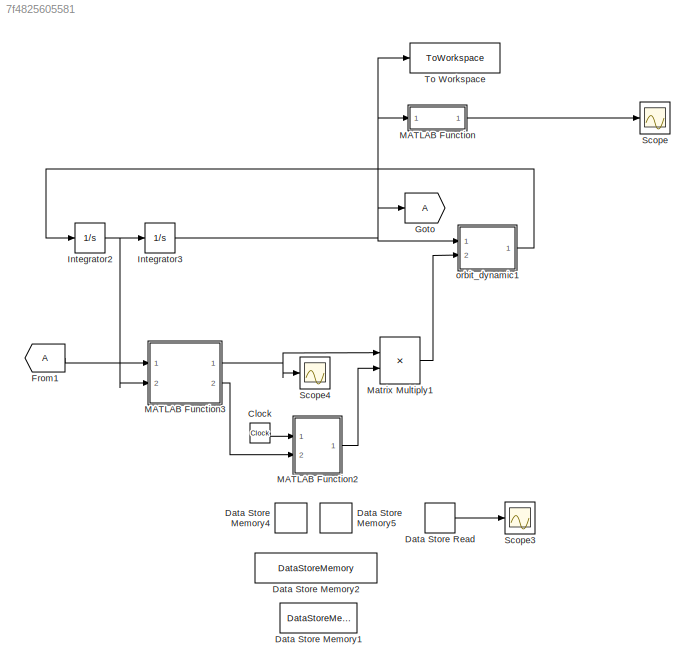
MODEL slx_7f4825605581
KIND model
CONFIG AbsTol = auto
CONFIG EnableMultiTasking = off
CONFIG FixedStep = 0.05
CONFIG MaxStep = auto
CONFIG MinStep = auto
CONFIG RelTol = 1e-100
CONFIG SampleTimeConstraint = Unconstrained
CONFIG SolverName = ode4
CONFIG StartTime = 0.0
CONFIG StopTime = 50000
BLOCK [Clock] Clock
BLOCK [DataStoreMemory] Data Store Memory1
  DataStoreName = maneuvers
  InitialValue = maneuvers
  OutDataTypeStr = double
  ReadBeforeWriteMsg = warning
  ShowAdditionalParam = off
  SignalType = real
  WriteAfterReadMsg = warning
  WriteAfterWriteMsg = warning
BLOCK [DataStoreMemory] Data Store Memory2
  DataStoreName = astrophysical_constants
  InitialValue = astrophysical_constants
  OutDataTypeStr = double
  ReadBeforeWriteMsg = warning
  ShowAdditionalParam = off
  SignalType = real
  WriteAfterReadMsg = warning
  WriteAfterWriteMsg = warning
BLOCK [DataStoreMemory] Data Store Memory4
  DataStoreName = state
  InitialValue = state
  OutDataTypeStr = int8
  ReadBeforeWriteMsg = warning
  ShowAdditionalParam = off
  SignalType = real
  WriteAfterReadMsg = warning
  WriteAfterWriteMsg = warning
BLOCK [DataStoreMemory] Data Store Memory5
  DataStoreName = t_prev
  InitialValue = t_prev
  OutDataTypeStr = double
  ReadBeforeWriteMsg = warning
  ShowAdditionalParam = off
  SignalType = real
  WriteAfterReadMsg = warning
  WriteAfterWriteMsg = warning
BLOCK [DataStoreRead] Data Store Read
  DataStoreName = state
  IndexOptions = Index vector (dialog)
  Indices = 1
  OutputSizes = 1
  Ports = [0, 1]
BLOCK [From] From1
BLOCK [Goto] Goto
BLOCK [Integrator] Integrator2
  InitialCondition = N_dr_H2N_0
  Ports = [1, 1]
BLOCK [Integrator] Integrator3
  InitialCondition = N_r_H2N_0
  Ports = [1, 1]
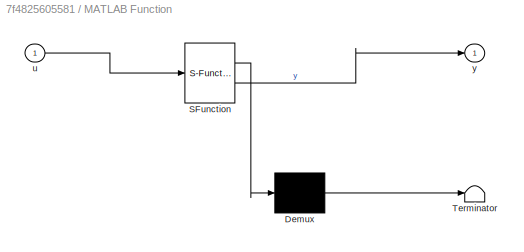
BLOCK [SubSystem] MATLAB Function
  ErrorFcn = Stateflow.Translate.translate
  PermitHierarchicalResolution = ExplicitOnly
  Ports = [1, 1]
  RequestExecContextInheritance = off
  SFBlockType = MATLAB Function
  TreatAsAtomicUnit = on
BLOCK [Demux] MATLAB Function/ Demux 
  Outputs = 1
  Ports = [1, 1]
BLOCK [S-Function] MATLAB Function/ SFunction 
  EnableBusSupport = on
  FunctionName = sf_sfun
  PortCounts = [1 2]
  Ports = [1, 2]
  SFcnIsStateOwnerBlock = off
  SFunctionDeploymentMode = off
  Tag = Stateflow S-Function 2
BLOCK [Terminator] MATLAB Function/ Terminator 
BLOCK [Inport] MATLAB Function/u
BLOCK [Outport] MATLAB Function/y
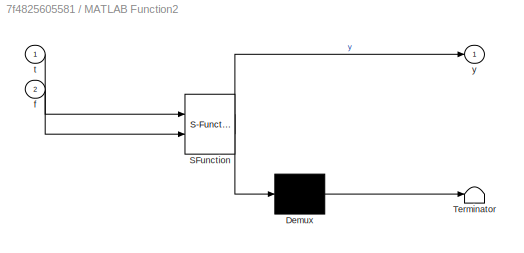
BLOCK [SubSystem] MATLAB Function2
  ErrorFcn = Stateflow.Translate.translate
  PermitHierarchicalResolution = ExplicitOnly
  Ports = [2, 1]
  RequestExecContextInheritance = off
  SFBlockType = MATLAB Function
  TreatAsAtomicUnit = on
BLOCK [Demux] MATLAB Function2/ Demux 
  Outputs = 1
  Ports = [1, 1]
BLOCK [S-Function] MATLAB Function2/ SFunction 
  EnableBusSupport = on
  FunctionName = sf_sfun
  PortCounts = [2 2]
  Ports = [2, 2]
  SFcnIsStateOwnerBlock = off
  SFunctionDeploymentMode = off
  Tag = Stateflow S-Function 5
BLOCK [Terminator] MATLAB Function2/ Terminator 
BLOCK [Inport] MATLAB Function2/f
  Port = 2
BLOCK [Inport] MATLAB Function2/t
BLOCK [Outport] MATLAB Function2/y
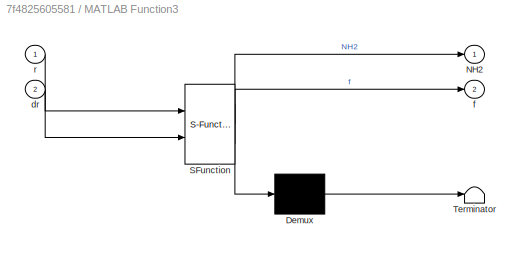
BLOCK [SubSystem] MATLAB Function3
  ErrorFcn = Stateflow.Translate.translate
  PermitHierarchicalResolution = ExplicitOnly
  Ports = [2, 2]
  RequestExecContextInheritance = off
  SFBlockType = MATLAB Function
  TreatAsAtomicUnit = on
BLOCK [Demux] MATLAB Function3/ Demux 
  Outputs = 1
  Ports = [1, 1]
BLOCK [S-Function] MATLAB Function3/ SFunction 
  EnableBusSupport = on
  FunctionName = sf_sfun
  PortCounts = [2 3]
  Ports = [2, 3]
  SFcnIsStateOwnerBlock = off
  SFunctionDeploymentMode = off
  Tag = Stateflow S-Function 9
BLOCK [Terminator] MATLAB Function3/ Terminator 
BLOCK [Outport] MATLAB Function3/NH2
BLOCK [Inport] MATLAB Function3/dr
  Port = 2
BLOCK [Outport] MATLAB Function3/f
  Port = 2
BLOCK [Inport] MATLAB Function3/r
BLOCK [Product] Matrix Multiply1
  Multiplication = Matrix(*)
  Ports = [2, 1]
BLOCK [Scope] Scope
  Floating = off
  NumInputPorts = 1
  Ports = [1]
  ScopeSpecificationString = Simulink.scopes.TimeScopeBlockCfg('CurrentConfiguration', extmgr.ConfigurationSet(extmgr.Configuration('Core','General UI',true),extmgr.Configuration('Core','Source UI',true),extmgr.Configuration('Sources','WiredSimulink',true),extmgr.Configuration('Visuals','Time Domain',true,'SerializedDisplays',{struct('MinYLimReal','2794.71305','MaxYLimReal','42847.58258','YLabelReal','','MinYLimMag','2794.713...<+1434ch>
BLOCK [Scope] Scope3
  Floating = off
  NumInputPorts = 1
  Ports = [1]
  ScopeSpecificationString = Simulink.scopes.TimeScopeBlockCfg('CurrentConfiguration', extmgr.ConfigurationSet(extmgr.Configuration('Core','General UI',true),extmgr.Configuration('Core','Source UI',true),extmgr.Configuration('Sources','WiredSimulink',true,'DataLoggingVariableName','ScopeData3'),extmgr.Configuration('Visuals','Time Domain',true,'SerializedDisplays',{struct('MinYLimReal','-0.875','MaxYLimReal','7.875','YLabelRe...<+1411ch>
BLOCK [Scope] Scope4
  Floating = off
  NumInputPorts = 1
  Ports = [1]
  ScopeSpecificationString = Simulink.scopes.TimeScopeBlockCfg('CurrentConfiguration', extmgr.ConfigurationSet(extmgr.Configuration('Core','General UI',true),extmgr.Configuration('Core','Source UI',true),extmgr.Configuration('Sources','WiredSimulink',true,'DataLoggingVariableName','ScopeData2'),extmgr.Configuration('Visuals','Time Domain',true,'SerializedDisplays',{struct('MinYLimReal','-0.07926','MaxYLimReal','0.0851','YLabe...<+1626ch>
BLOCK [ToWorkspace] To Workspace
  FixptAsFi = on
  MaxDataPoints = inf
  Ports = [1]
  SampleTime = 10
  VariableName = N_r_H2N
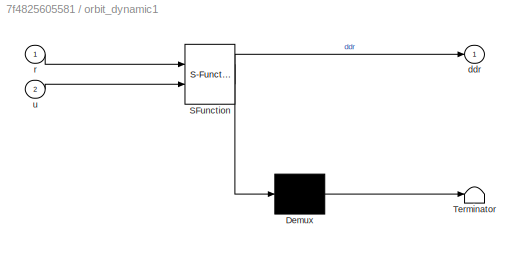
BLOCK [SubSystem] orbit_dynamic1
  ErrorFcn = Stateflow.Translate.translate
  PermitHierarchicalResolution = ExplicitOnly
  Ports = [2, 1]
  RequestExecContextInheritance = off
  SFBlockType = MATLAB Function
  TreatAsAtomicUnit = on
BLOCK [Demux] orbit_dynamic1/ Demux 
  Outputs = 1
  Ports = [1, 1]
BLOCK [S-Function] orbit_dynamic1/ SFunction 
  EnableBusSupport = on
  FunctionName = sf_sfun
  PortCounts = [2 2]
  Ports = [2, 2]
  SFcnIsStateOwnerBlock = off
  SFunctionDeploymentMode = off
  Tag = Stateflow S-Function 4
BLOCK [Terminator] orbit_dynamic1/ Terminator 
BLOCK [Outport] orbit_dynamic1/ddr
BLOCK [Inport] orbit_dynamic1/r
BLOCK [Inport] orbit_dynamic1/u
  Port = 2
LINE Clock:1 -> MATLAB Function2:1
LINE Data Store Read:1 -> Scope3:1
LINE From1:1 -> MATLAB Function3:1
NET Integrator2:1 -> Integrator3:1, MATLAB Function3:2
NET Integrator3:1 -> Goto:1, MATLAB Function:1, To Workspace:1, orbit_dynamic1:1
LINE MATLAB Function2:1 -> Matrix Multiply1:2
NET MATLAB Function3:1 -> Matrix Multiply1:1, Scope4:1
LINE MATLAB Function3:2 -> MATLAB Function2:2
LINE MATLAB Function:1 -> Scope:1
LINE Matrix Multiply1:1 -> orbit_dynamic1:2
LINE orbit_dynamic1:1 -> Integrator2:1
note: NET lines group one-source signal fan-out (src -> all destinations, sorted); 1:1 wires keep LINE
CHART MATLAB Function states=1 transitions=1
  STATE_LABEL 'eML_blk_kernel()'
  STATE_LABEL 'SCRIPT:\nfunction y = fcn(u)\ny = norm(u);\n'
CHART orbit_dynamic1 states=1 transitions=1
  STATE_LABEL 'eML_blk_kernel()'
  STATE_LABEL 'SCRIPT:\nfunction ddr = fcn(r,u)\nglobal astrophysical_constants;\n\nmu=astrophysical_constants(1,1);\n\nddr = -(mu/(norm(r)^3))*r+u;\n'
CHART MATLAB Function2 states=1 transitions=1
  STATE_LABEL 'eML_blk_kernel()'
  STATE_LABEL 'SCRIPT:\nfunction y = fcn(t,f)\n\nglobal astrophysical_constants;\nglobal state;\nglobal t_prev;\nglobal maneuvers;\n\ny=zeros(3,1);\nepsilon_f=0.0001;\ndT=1;\nif state==0 && t>=2000\n    state=int8(1);\n    t_prev=t;\n    astrophysical_constants(5)=10;\nend\n\nif state==1\n    if abs(f-0)<epsilon_f\n        state=int8(2);\n        t_prev=t;\n    end\nend\n\nif state==2\n    if t>=t_prev && t<t_prev+dT \n        dVA=maneuv...<+613ch>'
CHART MATLAB Function3 states=1 transitions=1
  STATE_LABEL 'eML_blk_kernel()'
  STATE_LABEL "SCRIPT:\nfunction [NH2,f] = fcn(r,dr)\nglobal astrophysical_constants;\nmu=astrophysical_constants(1,1);\na=astrophysical_constants(3,1); %apogee\nb=astrophysical_constants(4,1); %perigee\ne=(1-(b/a)^2)^0.5; %eccentricity\nh_vector=cross(r,dr); %angular momentum\np=norm(h_vector)^2/mu;\nc=cross(dr,h_vector)-mu*(r/norm(r)); %eccentricity vector momentum\nf=acos(r'*c/(norm(r)*norm(c)));\nif r'*dr<0\nf=2*pi-f;\ne...<+205ch>"
CHART  states=0 transitions=0
CHART  states=0 transitions=0
CHART  states=0 transitions=0
CHART  states=0 transitions=0
